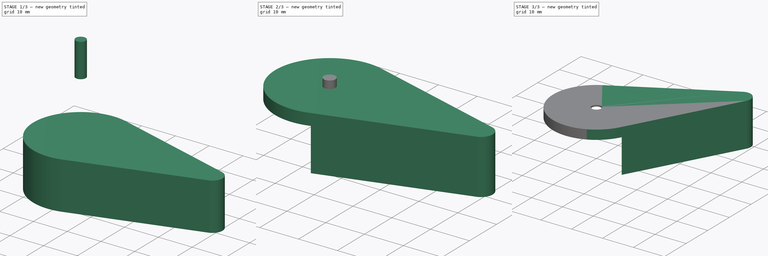
[diagram: build sequence overview — one tinted view per stage of 3, left to right]
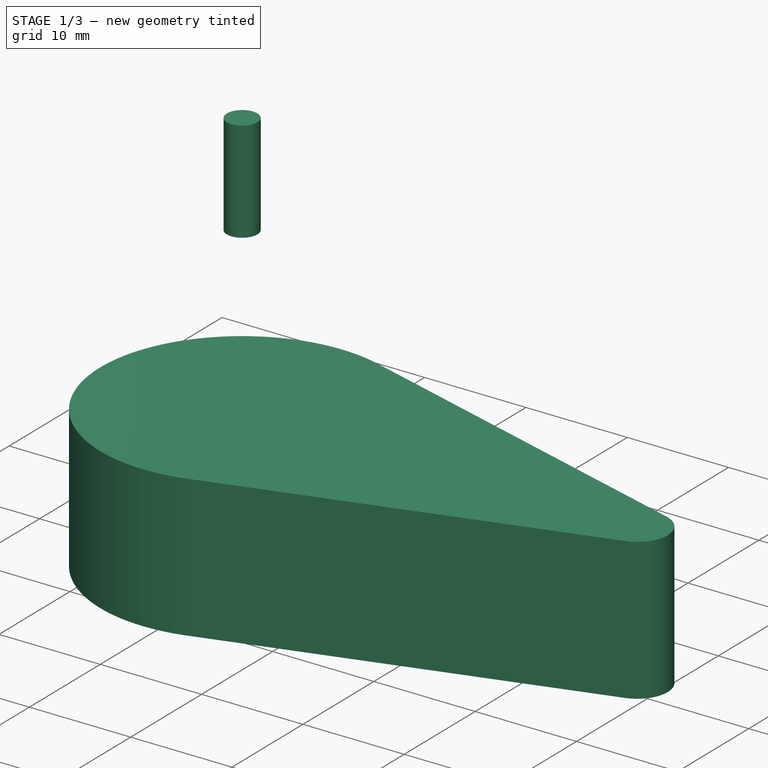
[diagram: stage 1 of 3 — iso view after this stage's code; geometry added in this stage tinted green]
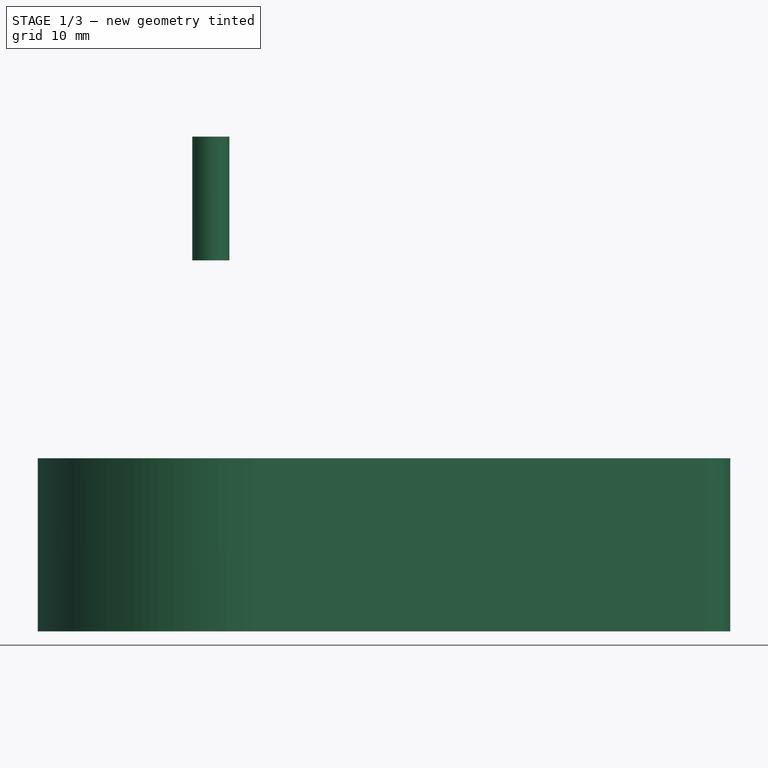
[diagram: stage 1 of 3 — front view after this stage's code; geometry added in this stage tinted green]
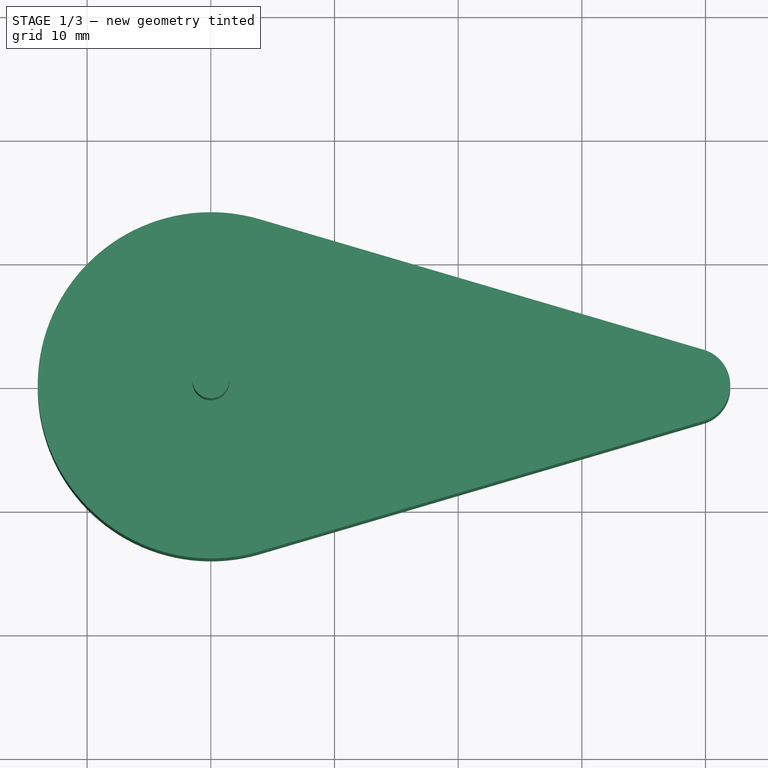
[diagram: stage 1 of 3 — top view after this stage's code; geometry added in this stage tinted green]
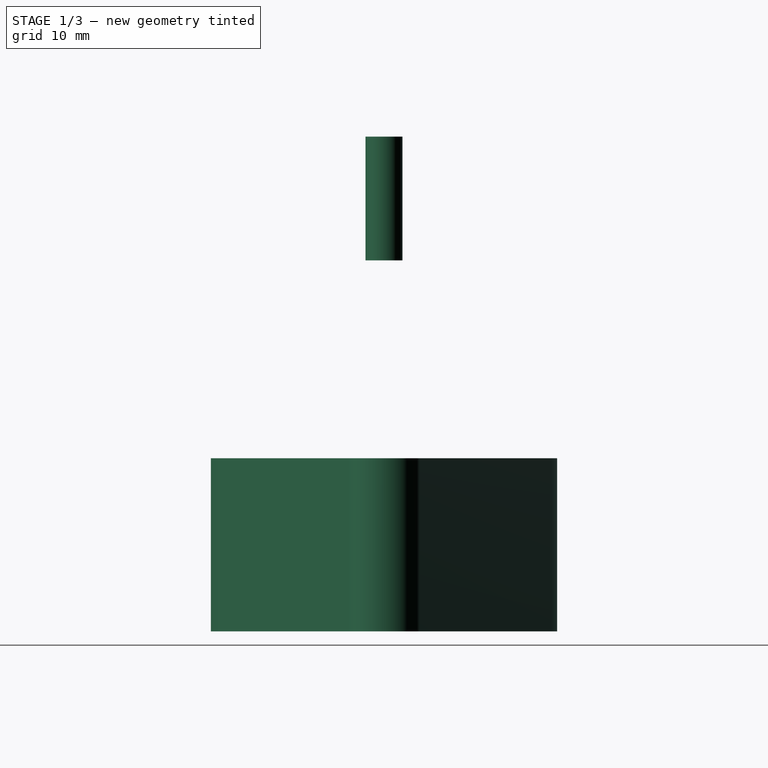
[diagram: stage 1 of 3 — right view after this stage's code; geometry added in this stage tinted green]
FCSTD DOCUMENT  (FreeCAD 0.17R13541 (Git))
Label: Pala Pinball Servo HD1160A
License: CreativeCommons Attribution
LicenseURL: http://creativecommons.org/licenses/by/4.0/
objects: Part::Cut×3, Part::Cylinder×2, Sketcher::SketchObject×1, Part::Feature×1, PartDesign::Pad×1, PartDesign::Body×1
note: 10 computed .brp shape members not serialized (recipe doc carries the construction recipe); baked Part::Feature solids carry a one-line shape summary decoded from their .brp

FEATURE [Part::Cylinder] Cylinder004005  label="paso central tornillo pala"
  Angle = 360
  AttacherType = Attacher::AttachEngine3D
  Height = 10
  Placement = pos=(0,0,30) rot=(0,0,1;0rad)
  Radius = 1.5
FEATURE [PartDesign::Pad] Pad  label="Pala estruida en bruto"
  Length = 14
  Length2 = 100
  Profile = -> Sketch
  Type = 0
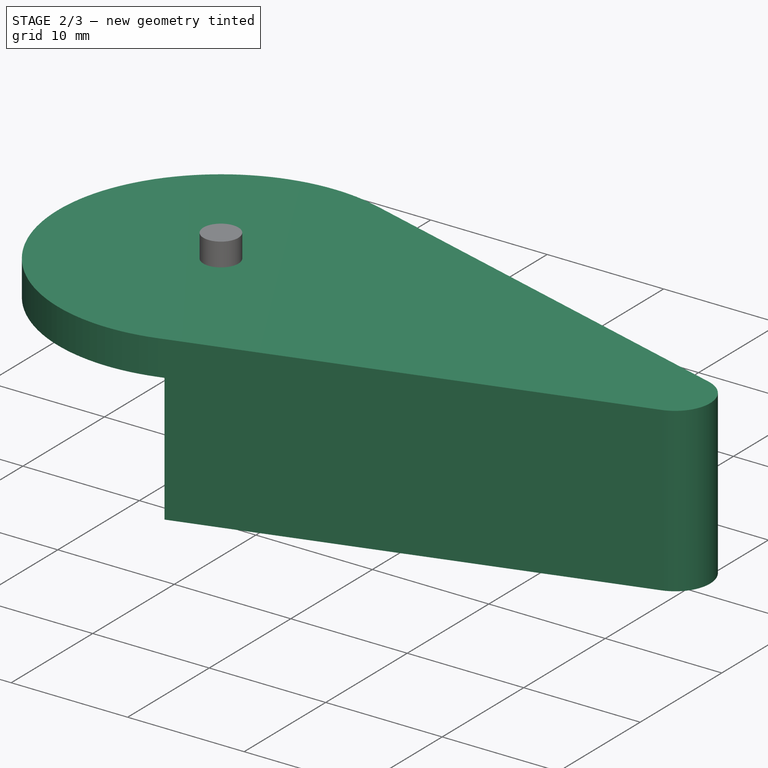
[diagram: stage 2 of 3 — iso view after this stage's code; geometry added in this stage tinted green]
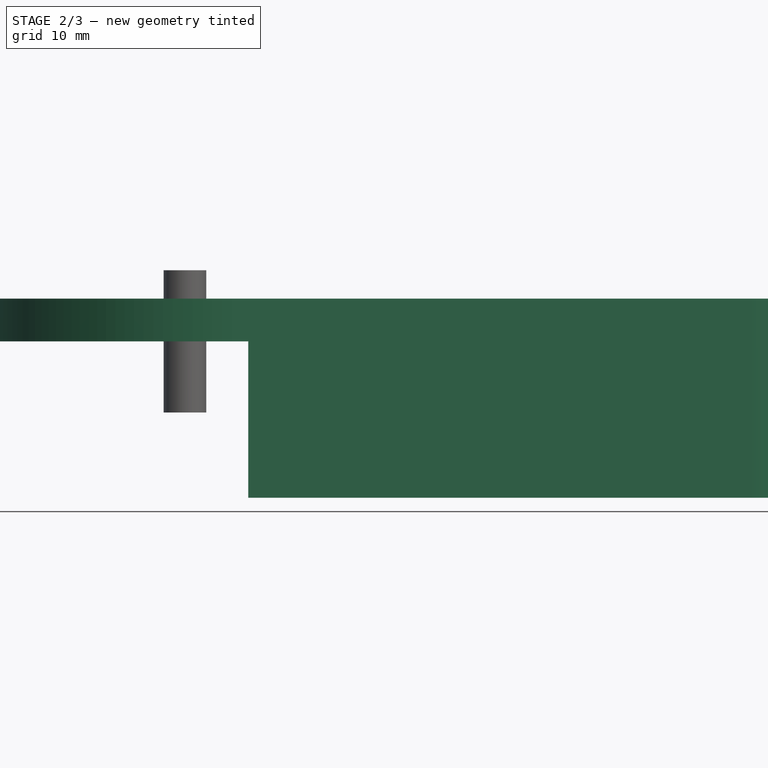
[diagram: stage 2 of 3 — front view after this stage's code; geometry added in this stage tinted green]
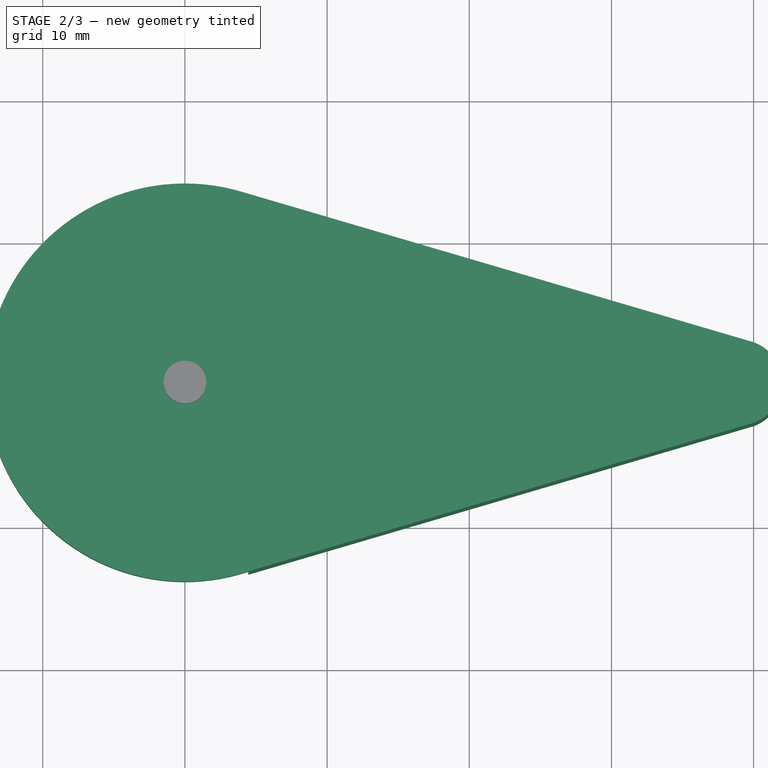
[diagram: stage 2 of 3 — top view after this stage's code; geometry added in this stage tinted green]
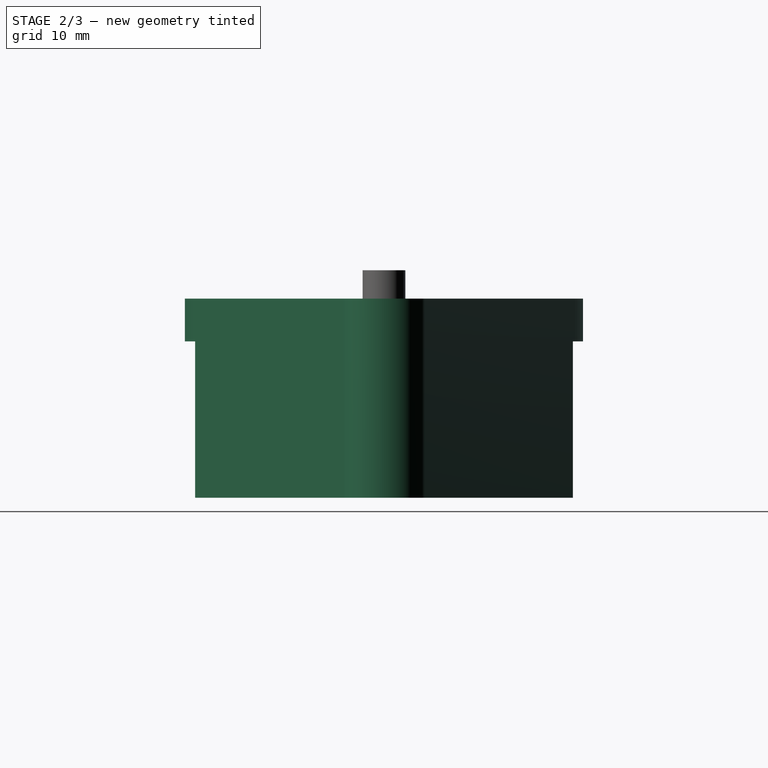
[diagram: stage 2 of 3 — right view after this stage's code; geometry added in this stage tinted green]
FEATURE [Sketcher::SketchObject] Sketch  label="perfil pala"
  MapMode = 5
  Support = -> [XY_Plane]
  sketch-geometry (4):
    g0: ArcOfCircle CenterX=0 CenterY=0 CenterZ=0 NormalX=0 NormalY=0 NormalZ=1 AngleXU=0 Radius=14 StartAngle=1.28486 EndAngle=4.99832
    g1: ArcOfCircle CenterX=39 CenterY=0 CenterZ=0 NormalX=0 NormalY=0 NormalZ=1 AngleXU=0 Radius=3 StartAngle=4.99832 EndAngle=7.56805
    g2: LineSegment StartX=3.94872 StartY=13.4316 StartZ=0 EndX=39.8462 EndY=2.8782 EndZ=0
    g3: LineSegment StartX=3.94872 StartY=-13.4316 StartZ=0 EndX=39.8462 EndY=-2.8782 EndZ=0
  constraints (9):
    c: Coincident(g0,g-1)
    c: PointOnObject(g1,g-1)
    c: Tangent(g2,g0) = 1.5708
    c: Tangent(g3,g0) = -1.5708
    c: Tangent(g2,g1) = 1.5708
    c: Tangent(g3,g1) = -1.5708
    c: Radius(g0) = 14
    c: Radius(g1) = 3
    c: DistanceX(g1) = 39
FEATURE [Part::Feature] Fusion003001  label="Fusion soporte 4 palas para hacer huecos"
  Placement = pos=(0,0,35) rot=(0,0,1;0rad)
  shape: bbox 26.5 x 26.5 x 2.52 mm, 20 faces (baked)
FEATURE [Part::Cylinder] Cylinder004003  label="Vaciado central pala"
  Angle = 360
  AttacherType = Attacher::AttachEngine3D
  Height = 15
  Placement = pos=(0,0,-4) rot=(0,0,1;0rad)
  Radius = 14.01
FEATURE [PartDesign::Body] Body
  Group = -> [Sketch,Pad]
  Origin = -> Origin
  Tip = -> Pad
FEATURE [Part::Cut] Cut002  label="Pala sin cilindro central"
  Base = -> Pad
  Placement = pos=(0,0,24) rot=(0,0,1;0rad)
  Refine = true
  Tool = -> Cylinder004003
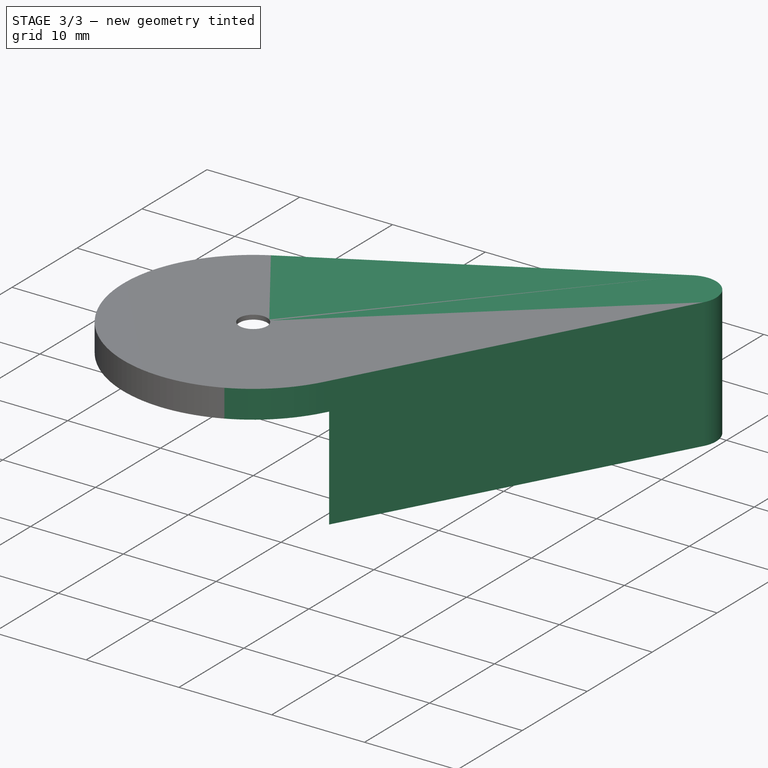
[diagram: stage 3 of 3 — iso view after this stage's code; geometry added in this stage tinted green]
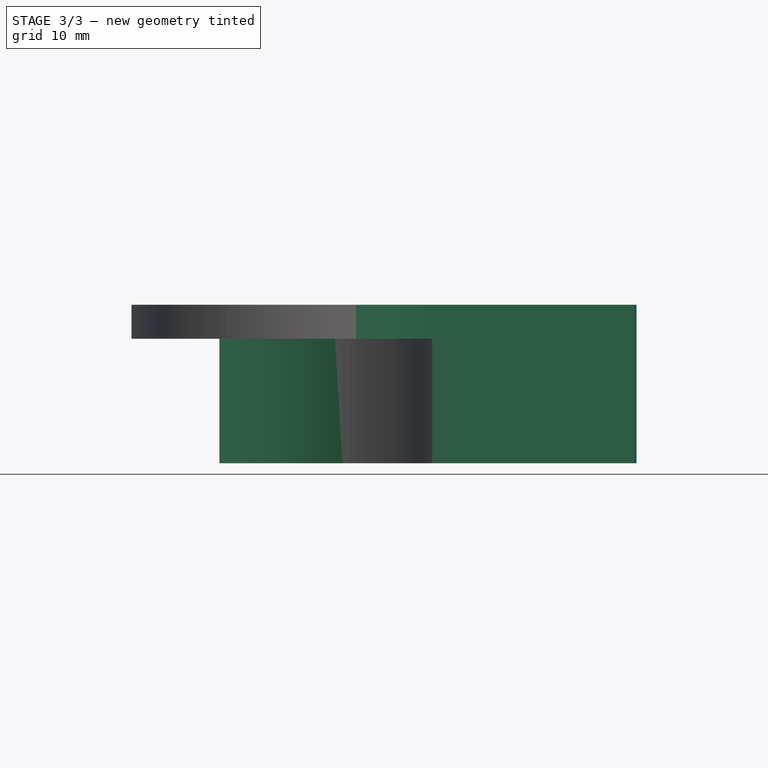
[diagram: stage 3 of 3 — front view after this stage's code; geometry added in this stage tinted green]
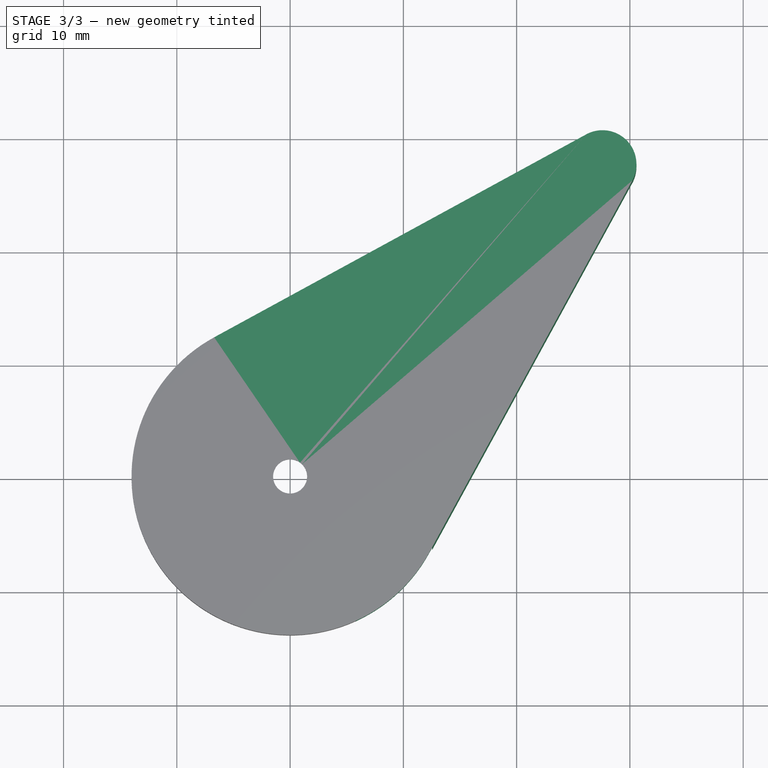
[diagram: stage 3 of 3 — top view after this stage's code; geometry added in this stage tinted green]
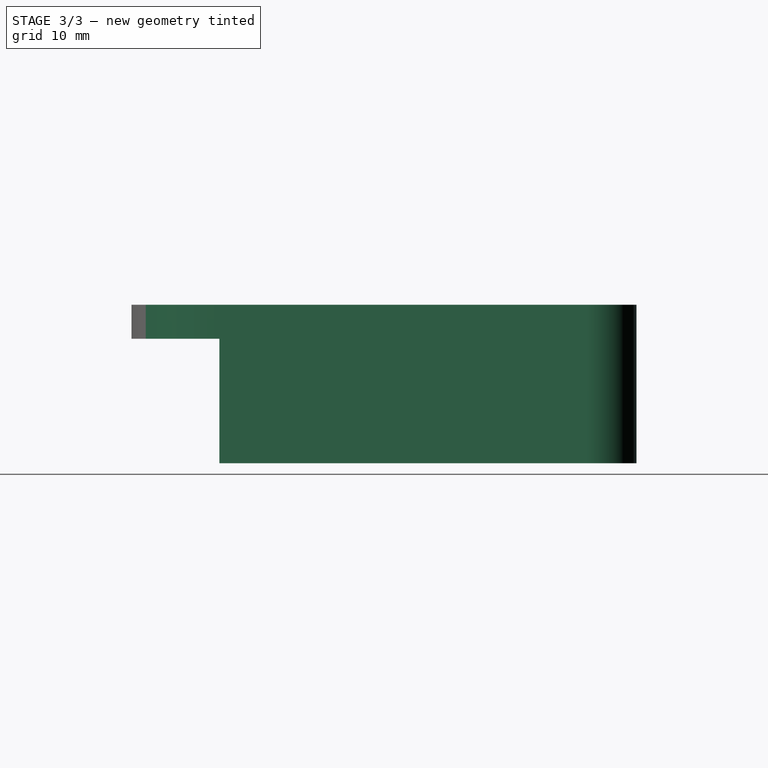
[diagram: stage 3 of 3 — right view after this stage's code; geometry added in this stage tinted green]
FEATURE [Part::Cut] Cut003  label="Pala pinball master sin paso tornillo"
  Base = -> Cut002
  Placement = pos=(0,0,0) rot=(0,0,1;0.785398rad)
  Refine = true
  Tool = -> Fusion003001
FEATURE [Part::Cut] Cut003002  label="Pala pinball master"
  Base = -> Cut003
  Refine = true
  Tool = -> Cylinder004005
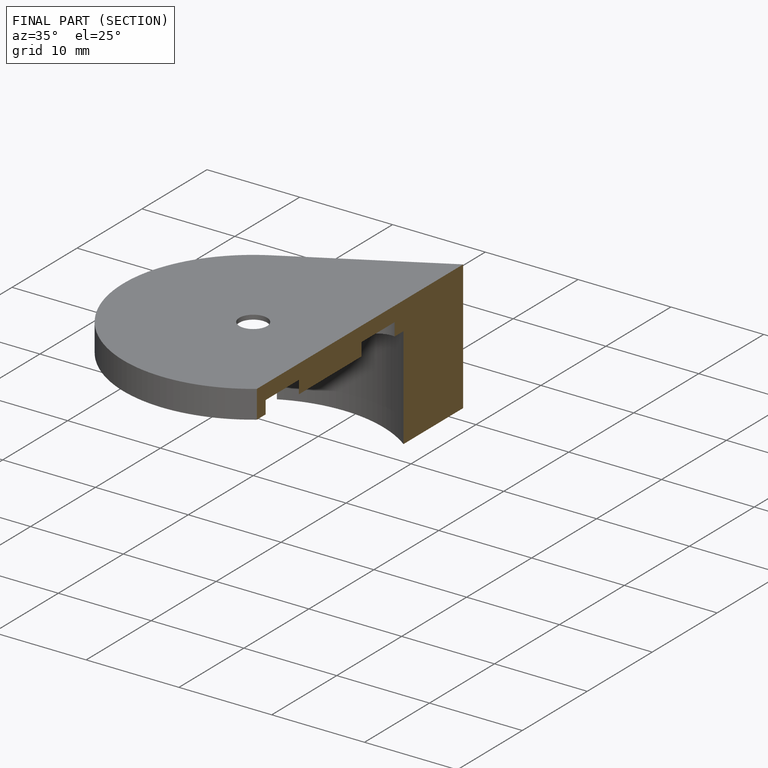
[diagram: finished part — half-section view (interior)]
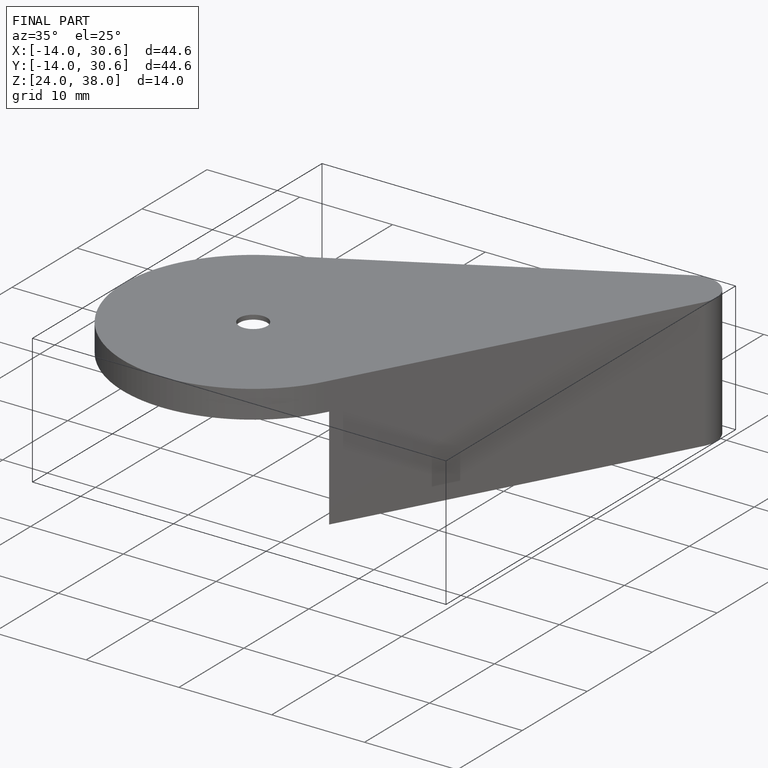
[diagram: finished part — iso view with bounding-box wireframe]
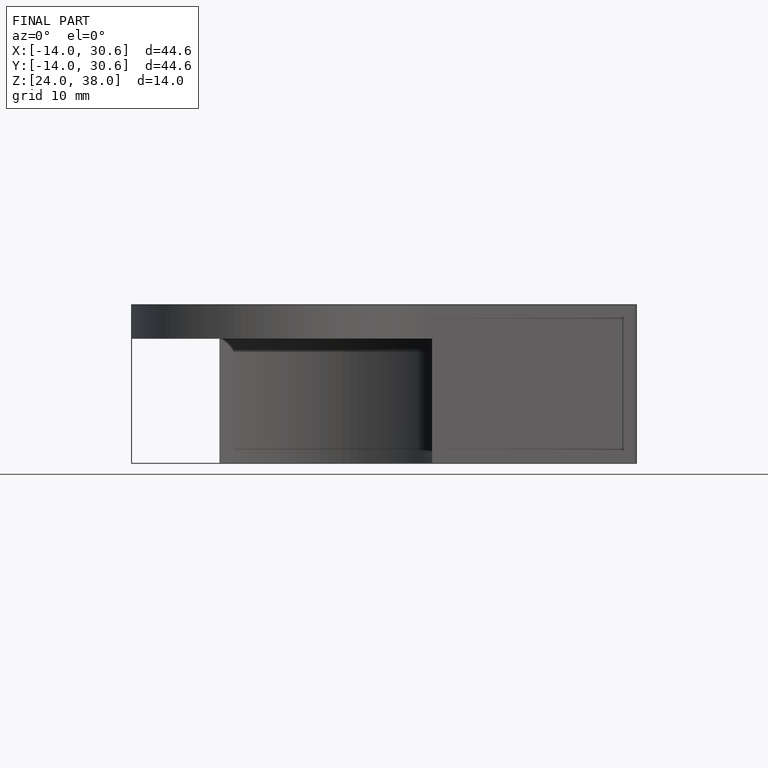
[diagram: finished part — front view with bounding-box wireframe]
